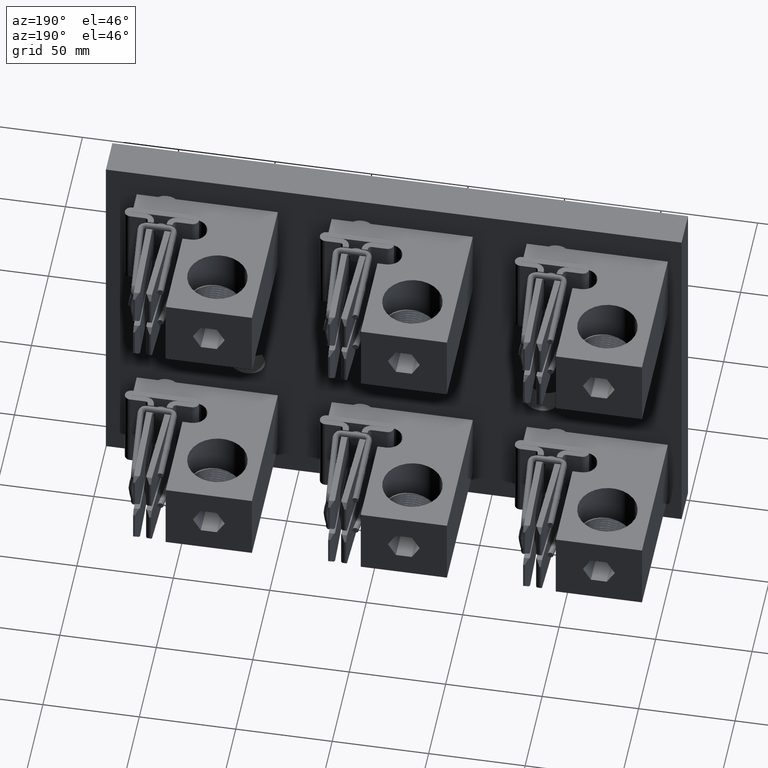
[diagram: clean part render]
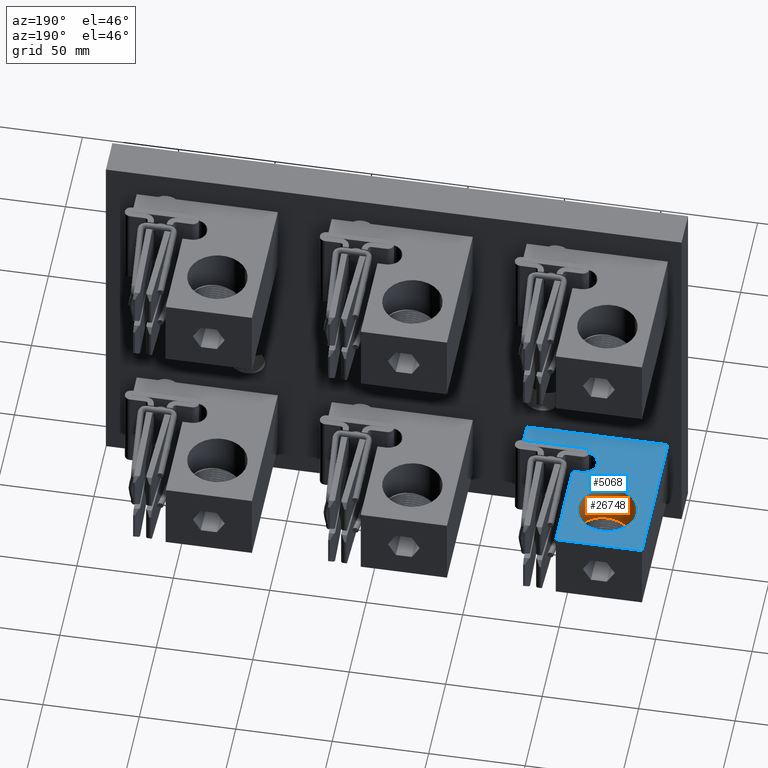
[diagram: same view with the hole feature highlighted: cylindrical wall and planar end face, labeled with their STEP entity ids]
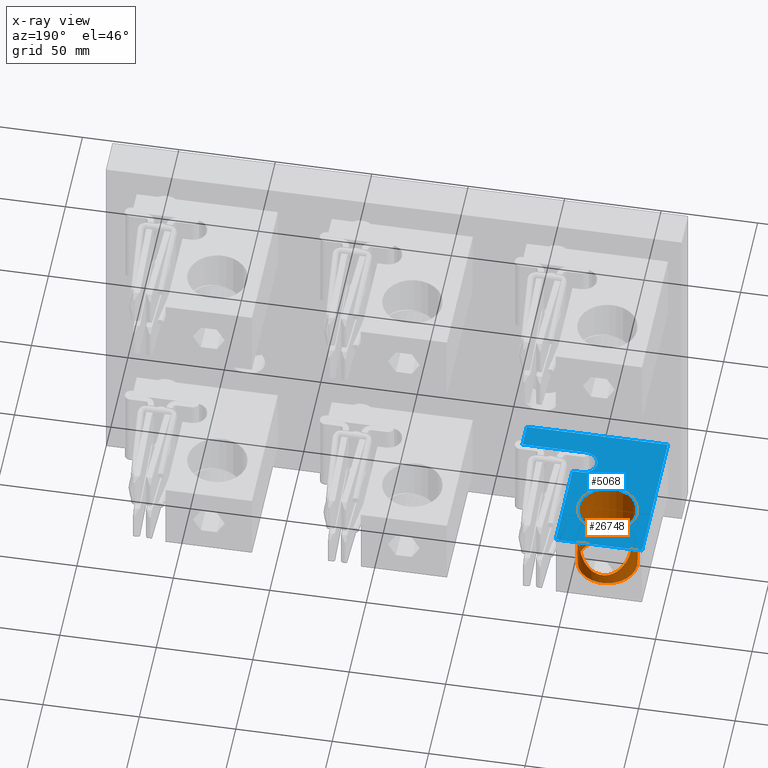
[diagram: x-ray of the same camera — body ghosted, the hole faces saturated]
A machine part, auxiliary view. The highlighted faces form one hole feature of diameter 30.9372 mm: the cylindrical wall (entity #26748, orange) and its adjacent planar end face (entity #5068, blue) — they share a circular edge in the B-rep.
The next image is the same camera in x-ray (body ghosted, the hole faces saturated) — the bore reads through the body.
Wall:
#196 = CARTESIAN_POINT ( 'NONE',  ( -5.132902677304044500, 3.193709035272325600, -2.966816348316349700 ) ) ;
#466 = CARTESIAN_POINT ( 'NONE',  ( -4.734029742544428200, 3.358978440829739400, -3.173424917302984000 ) ) ;
#747 = CARTESIAN_POINT ( 'NONE',  ( -4.401323011078410700, 3.272243346142677600, -3.069391195002580300 ) ) ;
#1014 = CARTESIAN_POINT ( 'NONE',  ( -4.206519667824091300, 3.085222296419631400, -2.775526994470584300 ) ) ;
#1292 = CARTESIAN_POINT ( 'NONE',  ( -4.206422562100416800, 3.085074104484784000, -2.524875633266412400 ) ) ;
#1544 = CARTESIAN_POINT ( 'NONE',  ( -4.441926564006237800, 3.294596412628640400, -2.203091629753416700 ) ) ;
#1808 = CARTESIAN_POINT ( 'NONE',  ( -4.106000000000000800, 2.750000000000000400, -3.399999999999999900 ) ) ;
#1813 = CARTESIAN_POINT ( 'NONE',  ( -4.787494335921461900, 3.354949647298513900, -2.131266990211865900 ) ) ;
#2107 = CARTESIAN_POINT ( 'NONE',  ( -5.111553601522373900, 3.212397921920481500, -2.307940679144759900 ) ) ;
#2393 = CARTESIAN_POINT ( 'NONE',  ( -5.238450000000001200, 3.061257285055307700, -2.650000000000000800 ) ) ;
#6332 = CARTESIAN_POINT ( 'NONE',  ( -5.238450000000001200, 3.061257285055307700, -2.650000000000000800 ) ) ;
#6370 = FACE_BOUND ( 'NONE', #37661, .T. ) ;
#6602 = CARTESIAN_POINT ( 'NONE',  ( -5.079219579181462900, 3.238292195777869000, -3.026303990761504400 ) ) ;
#6888 = CARTESIAN_POINT ( 'NONE',  ( -4.679037598365024300, 3.358216363005188200, -3.172539004968905300 ) ) ;
#7172 = CARTESIAN_POINT ( 'NONE',  ( -4.363121777459409300, 3.247281598853107200, -3.037879825910347400 ) ) ;
#7436 = CARTESIAN_POINT ( 'NONE',  ( -4.196410343643056400, 3.069311141131620100, -2.723475976142362600 ) ) ;
#7726 = CARTESIAN_POINT ( 'NONE',  ( -4.221065420164883600, 3.106355943382903100, -2.475882349474920900 ) ) ;
#8009 = CARTESIAN_POINT ( 'NONE',  ( -4.487355073714868000, 3.315108435140992100, -2.178320873842971100 ) ) ;
#8284 = CARTESIAN_POINT ( 'NONE',  ( -4.840965891169427800, 3.346102412120272700, -2.141609623974800600 ) ) ;
#8563 = CARTESIAN_POINT ( 'NONE',  ( -5.141411328152659400, 3.184990048804268200, -2.345976779782940300 ) ) ;
#12786 = CARTESIAN_POINT ( 'NONE',  ( -5.237452140939298700, 3.062950835973186100, -2.687036078031511000 ) ) ;
#13084 = CARTESIAN_POINT ( 'NONE',  ( -5.042193664357927900, 3.263861333578024700, -3.058920224363888000 ) ) ;
#13347 = CARTESIAN_POINT ( 'NONE',  ( -4.642303516476783200, 3.354714970127616000, -3.168458914834012300 ) ) ;
#13618 = CARTESIAN_POINT ( 'NONE',  ( -4.317619165528218300, 3.212364658960770800, -2.992232878277294000 ) ) ;
#13901 = CARTESIAN_POINT ( 'NONE',  ( -4.192773288421385300, 3.063306831308582300, -2.686939586945515000 ) ) ;
#14181 = CARTESIAN_POINT ( 'NONE',  ( -4.246251426434223900, 3.139356783935038000, -2.414721188711176100 ) ) ;
#14453 = CARTESIAN_POINT ( 'NONE',  ( -4.535631627133871500, 3.332251220991547600, -2.157918731863175400 ) ) ;
#14741 = CARTESIAN_POINT ( 'NONE',  ( -4.892705597392538400, 3.332767437310099300, -2.157308042341643500 ) ) ;
#15039 = CARTESIAN_POINT ( 'NONE',  ( -5.183407341791488300, 3.139766126412528300, -2.414059300147246600 ) ) ;
#16907 = ORIENTED_EDGE ( 'NONE', *, *, #31016, .F. ) ;
#19282 = CARTESIAN_POINT ( 'NONE',  ( -5.230813781242951600, 3.073825352755908700, -2.740827100769184000 ) ) ;
#19560 = CARTESIAN_POINT ( 'NONE',  ( -4.988230773953770100, 3.295168269973868900, -3.097720332835778700 ) ) ;
#19823 = CARTESIAN_POINT ( 'NONE',  ( -4.615165215486348900, 3.350828939997651200, -3.163921468814369800 ) ) ;
#20110 = CARTESIAN_POINT ( 'NONE',  ( -4.270764989613712500, 3.166772626162444000, -2.927333533571016200 ) ) ;
#20384 = CARTESIAN_POINT ( 'NONE',  ( -4.191551683732118500, 3.061260116634076900, -2.659280635462768900 ) ) ;
#20657 = CARTESIAN_POINT ( 'NONE',  ( -4.288067633877743900, 3.184477017025519400, -2.346711565219153300 ) ) ;
#20919 = CARTESIAN_POINT ( 'NONE',  ( -4.569616698176385900, 3.341460013751302400, -2.147063240953990300 ) ) ;
#21222 = CARTESIAN_POINT ( 'NONE',  ( -4.941282302107395300, 3.315657171131669100, -2.177663730719255700 ) ) ;
#21298 = AXIS2_PLACEMENT_3D ( 'NONE', #24739, #69455, #31119 ) ;
#21449 = CARTESIAN_POINT ( 'NONE',  ( -4.715000000000000700, 2.750000000000000400, -1.899999999999999900 ) ) ;
#21486 = CARTESIAN_POINT ( 'NONE',  ( -5.208563828384567900, 3.106871451396174200, -2.474826400650683900 ) ) ;
#21984 = AXIS2_PLACEMENT_3D ( 'NONE', #21449, #27891, #34647 ) ;
#22169 = EDGE_LOOP ( 'NONE', ( #16907 ) ) ;
#24671 = ORIENTED_EDGE ( 'NONE', *, *, #70234, .F. ) ;
#24739 = CARTESIAN_POINT ( 'NONE',  ( -4.715000000000000700, 2.750000000000000400, -1.899999999999999900 ) ) ;
#25500 = CARTESIAN_POINT ( 'NONE',  ( -5.238450000000000300, 3.061257285055306800, -2.668703633857259800 ) ) ;
#25765 = CARTESIAN_POINT ( 'NONE',  ( -5.209542607008256000, 3.106022455920145000, -2.824672663139234700 ) ) ;
#26051 = CARTESIAN_POINT ( 'NONE',  ( -4.894258277017965700, 3.333034517968977100, -3.143060218945035200 ) ) ;
#26307 = CARTESIAN_POINT ( 'NONE',  ( -4.571176567592091000, 3.342035339655248500, -3.153620080171839900 ) ) ;
#26568 = CARTESIAN_POINT ( 'NONE',  ( -4.247016960737246500, 3.139885770684362600, -2.885059081748867700 ) ) ;
#26748 = ADVANCED_FACE ( 'NONE', ( #57540, #38510, #6370 ), #30423, .F. ) ;
#26841 = CARTESIAN_POINT ( 'NONE',  ( -4.192507573598207100, 3.062883834307801800, -2.613437543881723400 ) ) ;
#27111 = CARTESIAN_POINT ( 'NONE',  ( -4.317788489205208100, 3.211832882506712800, -2.308704020298401300 ) ) ;
#27385 = CARTESIAN_POINT ( 'NONE',  ( -4.595977167398706900, 3.347324770169596100, -2.140179660203496100 ) ) ;
#27641 = CARTESIAN_POINT ( 'NONE',  ( -4.986601566682458600, 3.295330027291613700, -2.202198515827525700 ) ) ;
#27891 = DIRECTION ( 'NONE',  ( -3.196228004487266600E-016, 0.0000000000000000000, 1.000000000000000000 ) ) ;
#27932 = CARTESIAN_POINT ( 'NONE',  ( -5.223389140935380800, 3.085360832578286900, -2.524107462186631500 ) ) ;
#29100 = EDGE_LOOP ( 'NONE', ( #46510 ) ) ;
#30423 = CYLINDRICAL_SURFACE ( 'NONE', #21984, 0.6089999999999999900 ) ;
#31016 = EDGE_CURVE ( 'NONE', #48525, #48525, #64368, .T. ) ;
#31119 = DIRECTION ( 'NONE',  ( 1.000000000000000000, 0.0000000000000000000, 4.485793093044771300E-016 ) ) ;
#32161 = CARTESIAN_POINT ( 'NONE',  ( -5.183074547681423300, 3.139776289595451100, -2.884878438887053000 ) ) ;
#32440 = CARTESIAN_POINT ( 'NONE',  ( -4.807272621108469800, 3.352239204130068800, -3.165572388920903100 ) ) ;
#32712 = CARTESIAN_POINT ( 'NONE',  ( -4.520511642204473500, 3.327363659359440900, -3.136294663206417700 ) ) ;
#33010 = CARTESIAN_POINT ( 'NONE',  ( -4.227092982926810000, 3.114606734211517100, -2.840303333754981000 ) ) ;
#33280 = CARTESIAN_POINT ( 'NONE',  ( -4.196580828047094900, 3.069577241989806200, -2.577047519317682500 ) ) ;
#33553 = CARTESIAN_POINT ( 'NONE',  ( -4.362210476329407200, 3.247227208084752600, -2.261955239346210300 ) ) ;
#33832 = CARTESIAN_POINT ( 'NONE',  ( -4.676854587295538900, 3.358920179919666200, -2.126642865541174200 ) ) ;
#34128 = CARTESIAN_POINT ( 'NONE',  ( -5.042311844670035000, 3.264533919914876400, -2.240132644617590400 ) ) ;
#34409 = CARTESIAN_POINT ( 'NONE',  ( -5.233537500722201600, 3.069396299210060100, -2.576131415398187600 ) ) ;
#34647 = DIRECTION ( 'NONE',  ( 1.000000000000000000, 0.0000000000000000000, 4.485793093044767300E-016 ) ) ;
#36541 = CARTESIAN_POINT ( 'NONE',  ( -4.715000000000000700, 2.750000000000000400, -3.399999999999999900 ) ) ;
#36804 = AXIS2_PLACEMENT_3D ( 'NONE', #36541, #81168, #43000 ) ;
#37661 = EDGE_LOOP ( 'NONE', ( #24671 ) ) ;
#38510 = FACE_OUTER_BOUND ( 'NONE', #22169, .T. ) ;
#38595 = CARTESIAN_POINT ( 'NONE',  ( -5.159410341866393200, 3.166581669018505800, -2.927043654469463800 ) ) ;
#38893 = CARTESIAN_POINT ( 'NONE',  ( -4.752344847179439400, 3.358131723077257400, -3.172440526641272300 ) ) ;
#39160 = CARTESIAN_POINT ( 'NONE',  ( -4.442636943290470000, 3.295619674513943200, -3.098271758131454500 ) ) ;
#39431 = CARTESIAN_POINT ( 'NONE',  ( -4.211005582693393200, 3.091980958967212300, -2.792399410262316600 ) ) ;
#39714 = CARTESIAN_POINT ( 'NONE',  ( -4.200999363965258300, 3.076642790545077900, -2.550601547277505000 ) ) ;
#40001 = CARTESIAN_POINT ( 'NONE',  ( -4.427680303542286000, 3.287190139223977100, -2.212137325899088800 ) ) ;
#40281 = CARTESIAN_POINT ( 'NONE',  ( -4.750843202185364200, 3.358222631414180500, -2.127453706317182600 ) ) ;
#40551 = CARTESIAN_POINT ( 'NONE',  ( -5.100866404997215200, 3.221372496849789400, -2.295928179579318100 ) ) ;
#40609 = EDGE_CURVE ( 'NONE', #63513, #63513, #50313, .T. ) ;
#40840 = CARTESIAN_POINT ( 'NONE',  ( -5.238450000000002900, 3.061257285055308600, -2.631296366142742600 ) ) ;
#43000 = DIRECTION ( 'NONE',  ( 1.000000000000000000, 0.0000000000000000000, 0.0000000000000000000 ) ) ;
#45039 = CARTESIAN_POINT ( 'NONE',  ( -5.112969530909885500, 3.211863544495721100, -2.991559550087530700 ) ) ;
#45294 = CARTESIAN_POINT ( 'NONE',  ( -4.697376117934728000, 3.359020747822007500, -3.173474138746023700 ) ) ;
#45546 = CARTESIAN_POINT ( 'NONE',  ( -4.388101674319967700, 3.264047426531654100, -3.059153427841144100 ) ) ;
#45820 = CARTESIAN_POINT ( 'NONE',  ( -4.199240212566373900, 3.073910601698979700, -2.741110461621935700 ) ) ;
#46091 = CARTESIAN_POINT ( 'NONE',  ( -4.210817793537434500, 3.091703424372293600, -2.508265642599242000 ) ) ;
#46350 = CARTESIAN_POINT ( 'NONE',  ( -4.471876949619347600, 3.308610361940258000, -2.186117067337562900 ) ) ;
#46510 = ORIENTED_EDGE ( 'NONE', *, *, #40609, .T. ) ;
#46615 = CARTESIAN_POINT ( 'NONE',  ( -4.805512193281022500, 3.352505630132347000, -2.134116560606360100 ) ) ;
#46912 = CARTESIAN_POINT ( 'NONE',  ( -5.131834356217679800, 3.194202337401933300, -2.332969311673288400 ) ) ;
#48525 = VERTEX_POINT ( 'NONE', #1808 ) ;
#50313 = CIRCLE ( 'NONE', #21298, 0.6089999999999994300 ) ;
#51416 = CARTESIAN_POINT ( 'NONE',  ( -5.067266397812511000, 3.247008600644646100, -3.037530423143753700 ) ) ;
#51684 = CARTESIAN_POINT ( 'NONE',  ( -4.651511933876268000, 3.355751702514753600, -3.169667459868502400 ) ) ;
#51968 = CARTESIAN_POINT ( 'NONE',  ( -4.351293620774446100, 3.238673276408673200, -3.026797444564715000 ) ) ;
#52233 = CARTESIAN_POINT ( 'NONE',  ( -4.193513961955449800, 3.064542161335162900, -2.696213923088389900 ) ) ;
#52507 = CARTESIAN_POINT ( 'NONE',  ( -4.226931041525715700, 3.114390483379951800, -2.460108044630146200 ) ) ;
#52790 = CARTESIAN_POINT ( 'NONE',  ( -4.519220980598105600, 3.326923159088708300, -2.164228463084081300 ) ) ;
#53065 = CARTESIAN_POINT ( 'NONE',  ( -4.858401615495037800, 3.342142839192566500, -2.146253415734384400 ) ) ;
#53362 = CARTESIAN_POINT ( 'NONE',  ( -5.168111436417922800, 3.157699496602449900, -2.385959708530037900 ) ) ;
#57540 = FACE_OUTER_BOUND ( 'NONE', #29100, .T. ) ;
#57631 = CARTESIAN_POINT ( 'NONE',  ( -5.233642991505205600, 3.069223922460242400, -2.723057224218719000 ) ) ;
#57914 = CARTESIAN_POINT ( 'NONE',  ( -5.029125898501503900, 3.271968911426763600, -3.069048905061341900 ) ) ;
#58196 = CARTESIAN_POINT ( 'NONE',  ( -4.624142057762346900, 3.352253939916894200, -3.165586325865846500 ) ) ;
#58465 = CARTESIAN_POINT ( 'NONE',  ( -4.297564692976626700, 3.194163742256491500, -2.967462738181779500 ) ) ;
#58733 = CARTESIAN_POINT ( 'NONE',  ( -4.191794951658348400, 3.061670316553645400, -2.668486448002006700 ) ) ;
#59002 = CARTESIAN_POINT ( 'NONE',  ( -4.261516568128575600, 3.157278616284582300, -2.386611410314780200 ) ) ;
#59270 = CARTESIAN_POINT ( 'NONE',  ( -4.561023262503962200, 3.339278617203080400, -2.149629798954791700 ) ) ;
#59560 = CARTESIAN_POINT ( 'NONE',  ( -4.909278850323327800, 3.327431765507189000, -2.163624671840646200 ) ) ;
#59741 = CARTESIAN_POINT ( 'NONE',  ( -5.238450000000000300, 3.061257285055306800, -2.650000000000000400 ) ) ;
#59856 = CARTESIAN_POINT ( 'NONE',  ( -5.202731617612935000, 3.114841591607056000, -2.459248436497981400 ) ) ;
#60746 = VERTEX_POINT ( 'NONE', #59741 ) ;
#63513 = VERTEX_POINT ( 'NONE', #74087 ) ;
#64070 = CARTESIAN_POINT ( 'NONE',  ( -5.219838675948485800, 3.090883814953337500, -2.792800141399540200 ) ) ;
#64340 = CARTESIAN_POINT ( 'NONE',  ( -4.958733064573550600, 3.309157377002533500, -3.114581642576591300 ) ) ;
#64368 = CIRCLE ( 'NONE', #36804, 0.6089999999999999900 ) ;
#64619 = CARTESIAN_POINT ( 'NONE',  ( -4.588533475616815200, 3.345997328484608100, -3.158267205256510400 ) ) ;
#64892 = CARTESIAN_POINT ( 'NONE',  ( -4.262403178614730900, 3.157645871427262400, -2.913471088019488500 ) ) ;
#65168 = CARTESIAN_POINT ( 'NONE',  ( -4.191546658647491000, 3.061251665810572800, -2.631725101368514800 ) ) ;
#65444 = CARTESIAN_POINT ( 'NONE',  ( -4.297533735051469100, 3.193608513559267800, -2.333800936594875500 ) ) ;
#65731 = CARTESIAN_POINT ( 'NONE',  ( -4.587076543476165100, 3.345480345256516100, -2.142341377183610200 ) ) ;
#66013 = CARTESIAN_POINT ( 'NONE',  ( -4.956730566706456300, 3.309212466608186400, -2.185392732115378800 ) ) ;
#66294 = CARTESIAN_POINT ( 'NONE',  ( -5.218924161717897200, 3.092086136445423100, -2.507341380086790700 ) ) ;
#69455 = DIRECTION ( 'NONE',  ( -3.196228004487266600E-016, 0.0000000000000000000, 1.000000000000000000 ) ) ;
#70234 = EDGE_CURVE ( 'NONE', #60746, #60746, #78246, .T. ) ;
#70446 = CARTESIAN_POINT ( 'NONE',  ( -5.190214329291777100, 3.131002868824170400, -2.870095434890035200 ) ) ;
#70709 = CARTESIAN_POINT ( 'NONE',  ( -4.860490332487708900, 3.342464974105981800, -3.154132279216424400 ) ) ;
#70988 = CARTESIAN_POINT ( 'NONE',  ( -4.537211428132990500, 3.332736858988503100, -3.142655649085009300 ) ) ;
#71279 = CARTESIAN_POINT ( 'NONE',  ( -4.239956526287162600, 3.131215196476327700, -2.870459325569042700 ) ) ;
#71545 = CARTESIAN_POINT ( 'NONE',  ( -4.195381357739990800, 3.067617496322949200, -2.586123707825050300 ) ) ;
#71829 = CARTESIAN_POINT ( 'NONE',  ( -4.328497578235445800, 3.220850787498548600, -2.296622580070856800 ) ) ;
#72108 = CARTESIAN_POINT ( 'NONE',  ( -4.640593678888187400, 3.355526011989684100, -2.130580536859522300 ) ) ;
#72392 = CARTESIAN_POINT ( 'NONE',  ( -5.001082465344144800, 3.287854183421201600, -2.211322643546551600 ) ) ;
#72679 = CARTESIAN_POINT ( 'NONE',  ( -5.230685146039454600, 3.074029685064317600, -2.558472518594849400 ) ) ;
#74087 = CARTESIAN_POINT ( 'NONE',  ( -4.106000000000001600, 2.750000000000000400, -1.899999999999999700 ) ) ;
#76924 = CARTESIAN_POINT ( 'NONE',  ( -5.167675475046668700, 3.157558894405747600, -2.913337383469302800 ) ) ;
#77200 = CARTESIAN_POINT ( 'NONE',  ( -4.788951375156651500, 3.354772704688472600, -3.168526697095246400 ) ) ;
#77475 = CARTESIAN_POINT ( 'NONE',  ( -4.472284568991638800, 3.309592964053453800, -3.115104714203807300 ) ) ;
#77736 = CARTESIAN_POINT ( 'NONE',  ( -4.221288838653625100, 3.106666003614545300, -2.824749116968562100 ) ) ;
#78007 = CARTESIAN_POINT ( 'NONE',  ( -4.199387427936552600, 3.074085987010029400, -2.559312747223446500 ) ) ;
#78246 = B_SPLINE_CURVE_WITH_KNOTS ( 'NONE', 3,
 ( #6332, #25500, #12786, #57631, #19282, #64070, #25765, #70446, #32161, #76924, #38595, #196, #45039, #6602, #51416, #13084, #57914, #19560, #64340, #26051, #70709, #32440, #77200, #38893, #466, #45294, #6888, #51684, #13347, #58196, #19823, #64619, #26307, #70988, #32712, #77475, #39160, #747, #45546, #7172, #51968, #13618, #58465, #20110, #64892, #26568, #71279, #33010, #77736, #39431, #1014, #45820, #7436, #52233, #13901, #58733, #20384, #65168, #26841, #71545, #33280, #78007, #39714, #1292, #46091, #7726, #52507, #14181, #59002, #20657, #65444, #27111, #71829, #33553, #78267, #40001, #1544, #46350, #8009, #52790, #14453, #59270, #20919, #65731, #27385, #72108, #33832, #78527, #40281, #1813, #46615, #8284, #53065, #14741, #59560, #21222, #66013, #27641, #72392, #34128, #78808, #40551, #2107, #46912, #8563, #53362, #15039, #59856, #21486, #66294, #27932, #72679, #34409, #79079, #40840, #2393 ),
 .UNSPECIFIED., .T., .F.,
 ( 4, 2, 2, 2, 2, 2, 2, 2, 2, 2, 2, 2, 2, 2, 2, 2, 2, 2, 2, 2, 2, 2, 2, 2, 2, 2, 2, 2, 2, 2, 2, 2, 2, 2, 2, 2, 2, 2, 2, 2, 2, 2, 2, 2, 2, 2, 2, 2, 2, 2, 2, 2, 2, 2, 2, 2, 2, 4 ),
 ( 0.0000000000000000000, 0.001400456203850450900, 0.002800912407700901700, 0.005601824815401734900, 0.007002281019252128500, 0.008402737223102521200, 0.01120364963080328600, 0.01260410583465368400, 0.01400456203850408400, 0.01680547444620479600, 0.01960638685390550900, 0.02100684305775583900, 0.02240729926160617300, 0.02380775546545650300, 0.02450798356738164200, 0.02520821166930678500, 0.02660866787315708000, 0.02800912407700736900, 0.03081003648470798500, 0.03221049268855830800, 0.03361094889240862800, 0.03641186130010925400, 0.03781231750395958700, 0.03921277370780991400, 0.04061322991166024800, 0.04201368611551057500, 0.04341414231936090900, 0.04411437042128606900, 0.04481459852321123500, 0.04621505472706159000, 0.04691528282898679800, 0.04761551093091200000, 0.04901596713476244500, 0.05041642333861288300, 0.05321733574631375100, 0.05461779195016416800, 0.05601824815401459200, 0.05881916056171541300, 0.06021961676556580200, 0.06162007296941619100, 0.06302052917326658700, 0.06372075727519176100, 0.06442098537711693500, 0.06722189778481764400, 0.06862235398866796400, 0.07002281019251829800, 0.07142326639636863200, 0.07282372260021896500, 0.07422417880406932700, 0.07562463500791968800, 0.07842554741562042500, 0.07982600361947080100, 0.08122645982332117600, 0.08402737223102199600, 0.08542782843487242700, 0.08682828463872284400, 0.08822874084257327500, 0.08962919704642367800 ),
 .UNSPECIFIED. ) ;
#78267 = CARTESIAN_POINT ( 'NONE',  ( -4.386868209804590400, 3.263994107817658200, -2.240811610457278800 ) ) ;
#78527 = CARTESIAN_POINT ( 'NONE',  ( -4.732128149778477100, 3.359037840360608000, -2.126505975167812100 ) ) ;
#78808 = CARTESIAN_POINT ( 'NONE',  ( -5.067090316491669600, 3.247723881484824400, -2.261320636489704900 ) ) ;
#79079 = CARTESIAN_POINT ( 'NONE',  ( -5.237441488070292200, 3.062969690460926900, -2.612682457353122400 ) ) ;
#81168 = DIRECTION ( 'NONE',  ( -3.196228004487266600E-016, 0.0000000000000000000, 1.000000000000000000 ) ) ;
End face:
#801 = CARTESIAN_POINT ( 'NONE',  ( -3.835000000000000900, 1.810000000000000100, -1.899999999999999700 ) ) ;
#2071 = CARTESIAN_POINT ( 'NONE',  ( -4.010000000000001600, 1.530000000000000200, -1.899999999999999700 ) ) ;
#5068 = ADVANCED_FACE ( 'NONE', ( #80167, #31166 ), #46585, .T. ) ;
#8497 = ORIENTED_EDGE ( 'NONE', *, *, #49097, .T. ) ;
#8530 = DIRECTION ( 'NONE',  ( 1.000000000000000000, 0.0000000000000000000, 3.196228004487266600E-016 ) ) ;
#8849 = LINE ( 'NONE', #58488, #42995 ) ;
#9400 = LINE ( 'NONE', #49124, #58522 ) ;
#11159 = CARTESIAN_POINT ( 'NONE',  ( -5.595000000000000600, 3.750000000000000900, -1.900000000000000100 ) ) ;
#11491 = EDGE_LOOP ( 'NONE', ( #56587, #67031, #64127, #8497, #54716, #25494, #78005, #69978 ) ) ;
#14388 = VECTOR ( 'NONE', #19240, 39.37007874015748100 ) ;
#15208 = EDGE_LOOP ( 'NONE', ( #20010 ) ) ;
#15403 = CARTESIAN_POINT ( 'NONE',  ( -4.010000000000001600, 1.810000000000000100, -1.899999999999999700 ) ) ;
#15568 = VERTEX_POINT ( 'NONE', #23906 ) ;
#15908 = CARTESIAN_POINT ( 'NONE',  ( -4.010000000000001600, 1.530000000000000200, -1.899999999999999700 ) ) ;
#16394 = CARTESIAN_POINT ( 'NONE',  ( -3.835000000000000900, 3.750000000000001300, -1.899999999999999700 ) ) ;
#16403 = EDGE_CURVE ( 'NONE', #50192, #55318, #60111, .T. ) ;
#19240 = DIRECTION ( 'NONE',  ( 0.0000000000000000000, 1.000000000000000000, 0.0000000000000000000 ) ) ;
#20010 = ORIENTED_EDGE ( 'NONE', *, *, #40609, .F. ) ;
#21298 = AXIS2_PLACEMENT_3D ( 'NONE', #24739, #69455, #31119 ) ;
#21861 = DIRECTION ( 'NONE',  ( 1.000000000000000000, 0.0000000000000000000, 3.196228004487266600E-016 ) ) ;
#22362 = DIRECTION ( 'NONE',  ( 1.000000000000000000, 0.0000000000000000000, 0.0000000000000000000 ) ) ;
#23906 = CARTESIAN_POINT ( 'NONE',  ( -5.595000000000000600, 3.750000000000000900, -1.900000000000000100 ) ) ;
#23973 = EDGE_CURVE ( 'NONE', #47039, #70928, #82422, .T. ) ;
#24739 = CARTESIAN_POINT ( 'NONE',  ( -4.715000000000000700, 2.750000000000000400, -1.899999999999999900 ) ) ;
#25494 = ORIENTED_EDGE ( 'NONE', *, *, #59768, .T. ) ;
#26334 = DIRECTION ( 'NONE',  ( -1.000000000000000000, -3.104372720073025900E-016, -3.196228004487266600E-016 ) ) ;
#27634 = CARTESIAN_POINT ( 'NONE',  ( -5.595000000000000600, 0.7500000000000004400, -1.900000000000000100 ) ) ;
#27769 = EDGE_CURVE ( 'NONE', #15568, #63870, #49183, .T. ) ;
#31119 = DIRECTION ( 'NONE',  ( 1.000000000000000000, 0.0000000000000000000, 4.485793093044771300E-016 ) ) ;
#31166 = FACE_OUTER_BOUND ( 'NONE', #11491, .T. ) ;
#33256 = EDGE_CURVE ( 'NONE', #63870, #47039, #9400, .T. ) ;
#34180 = DIRECTION ( 'NONE',  ( 0.0000000000000000000, 1.000000000000000000, 0.0000000000000000000 ) ) ;
#35984 = EDGE_CURVE ( 'NONE', #48267, #80642, #73528, .T. ) ;
#36529 = VECTOR ( 'NONE', #77863, 39.37007874015748100 ) ;
#39514 = VECTOR ( 'NONE', #34180, 39.37007874015748100 ) ;
#40206 = VECTOR ( 'NONE', #21861, 39.37007874015748100 ) ;
#40609 = EDGE_CURVE ( 'NONE', #63513, #63513, #50313, .T. ) ;
#42995 = VECTOR ( 'NONE', #26334, 39.37007874015748100 ) ;
#43555 = CARTESIAN_POINT ( 'NONE',  ( -2.715000000000000300, 1.250000000000000700, -1.899999999999999500 ) ) ;
#46585 = PLANE ( 'NONE',  #77216 ) ;
#46877 = DIRECTION ( 'NONE',  ( -3.196228004487266600E-016, 0.0000000000000000000, 1.000000000000000000 ) ) ;
#47039 = VERTEX_POINT ( 'NONE', #58408 ) ;
#48267 = VERTEX_POINT ( 'NONE', #801 ) ;
#48970 = AXIS2_PLACEMENT_3D ( 'NONE', #15908, #60692, #22362 ) ;
#49097 = EDGE_CURVE ( 'NONE', #70928, #50192, #70487, .T. ) ;
#49124 = CARTESIAN_POINT ( 'NONE',  ( -5.595000000000000600, 0.7500000000000004400, -1.900000000000000100 ) ) ;
#49183 = LINE ( 'NONE', #11159, #66293 ) ;
#49519 = DIRECTION ( 'NONE',  ( 3.369288335198560800E-017, -1.000000000000000000, 1.076901373215392200E-032 ) ) ;
#50192 = VERTEX_POINT ( 'NONE', #58926 ) ;
#50313 = CIRCLE ( 'NONE', #21298, 0.6089999999999994300 ) ;
#51101 = CARTESIAN_POINT ( 'NONE',  ( -2.715000000000000300, 0.7500000000000004400, -1.899999999999999500 ) ) ;
#54716 = ORIENTED_EDGE ( 'NONE', *, *, #16403, .T. ) ;
#55318 = VERTEX_POINT ( 'NONE', #61266 ) ;
#56587 = ORIENTED_EDGE ( 'NONE', *, *, #27769, .T. ) ;
#57205 = LINE ( 'NONE', #15403, #40206 ) ;
#58408 = CARTESIAN_POINT ( 'NONE',  ( -2.715000000000000300, 0.7500000000000004400, -1.899999999999999500 ) ) ;
#58488 = CARTESIAN_POINT ( 'NONE',  ( -3.835000000000000900, 3.750000000000001300, -1.899999999999999700 ) ) ;
#58522 = VECTOR ( 'NONE', #74921, 39.37007874015748100 ) ;
#58926 = CARTESIAN_POINT ( 'NONE',  ( -4.010000000000001600, 1.250000000000000200, -1.899999999999999700 ) ) ;
#59768 = EDGE_CURVE ( 'NONE', #55318, #48267, #57205, .T. ) ;
#59903 = CARTESIAN_POINT ( 'NONE',  ( -3.835000000000000900, 1.810000000000000100, -1.899999999999999700 ) ) ;
#60111 = CIRCLE ( 'NONE', #48970, 0.2800000000000003000 ) ;
#60692 = DIRECTION ( 'NONE',  ( 3.196228004487266600E-016, -0.0000000000000000000, -1.000000000000000000 ) ) ;
#61266 = CARTESIAN_POINT ( 'NONE',  ( -4.010000000000001600, 1.810000000000000300, -1.899999999999999700 ) ) ;
#63513 = VERTEX_POINT ( 'NONE', #74087 ) ;
#63870 = VERTEX_POINT ( 'NONE', #27634 ) ;
#64127 = ORIENTED_EDGE ( 'NONE', *, *, #23973, .T. ) ;
#66293 = VECTOR ( 'NONE', #49519, 39.37007874015748100 ) ;
#67031 = ORIENTED_EDGE ( 'NONE', *, *, #33256, .T. ) ;
#68904 = CARTESIAN_POINT ( 'NONE',  ( -2.715000000000000300, 1.250000000000000700, -1.899999999999999500 ) ) ;
#69455 = DIRECTION ( 'NONE',  ( -3.196228004487266600E-016, 0.0000000000000000000, 1.000000000000000000 ) ) ;
#69978 = ORIENTED_EDGE ( 'NONE', *, *, #79489, .T. ) ;
#70487 = LINE ( 'NONE', #43555, #36529 ) ;
#70928 = VERTEX_POINT ( 'NONE', #68904 ) ;
#73528 = LINE ( 'NONE', #59903, #39514 ) ;
#74087 = CARTESIAN_POINT ( 'NONE',  ( -4.106000000000001600, 2.750000000000000400, -1.899999999999999700 ) ) ;
#74921 = DIRECTION ( 'NONE',  ( 1.000000000000000000, 0.0000000000000000000, 3.196228004487266600E-016 ) ) ;
#77216 = AXIS2_PLACEMENT_3D ( 'NONE', #2071, #46877, #8530 ) ;
#77863 = DIRECTION ( 'NONE',  ( -1.000000000000000000, -1.054767565121336900E-016, -3.196228004487266600E-016 ) ) ;
#78005 = ORIENTED_EDGE ( 'NONE', *, *, #35984, .T. ) ;
#79489 = EDGE_CURVE ( 'NONE', #80642, #15568, #8849, .T. ) ;
#80167 = FACE_BOUND ( 'NONE', #15208, .T. ) ;
#80642 = VERTEX_POINT ( 'NONE', #16394 ) ;
#82422 = LINE ( 'NONE', #51101, #14388 ) ;